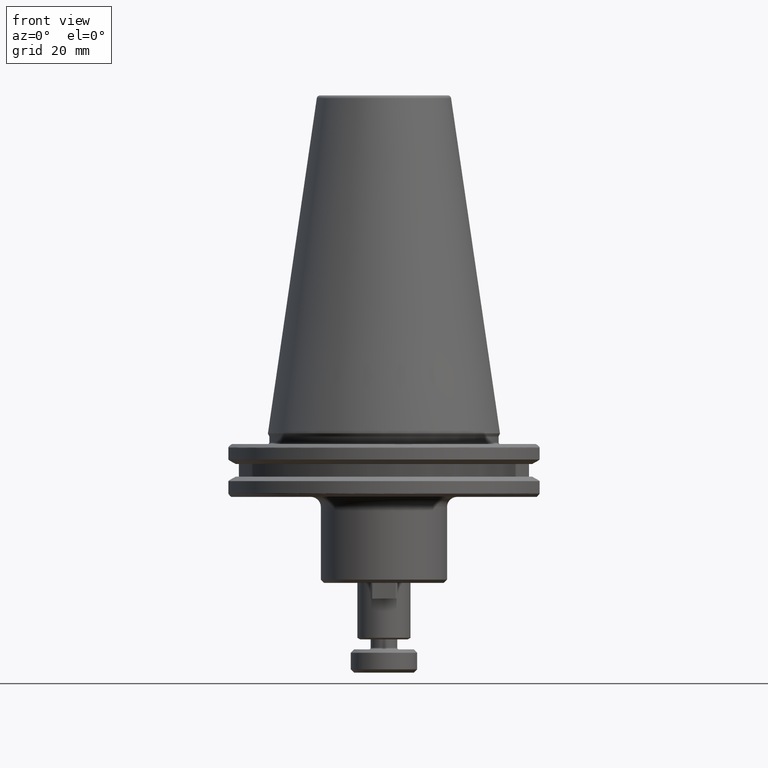
[diagram: clean part render]
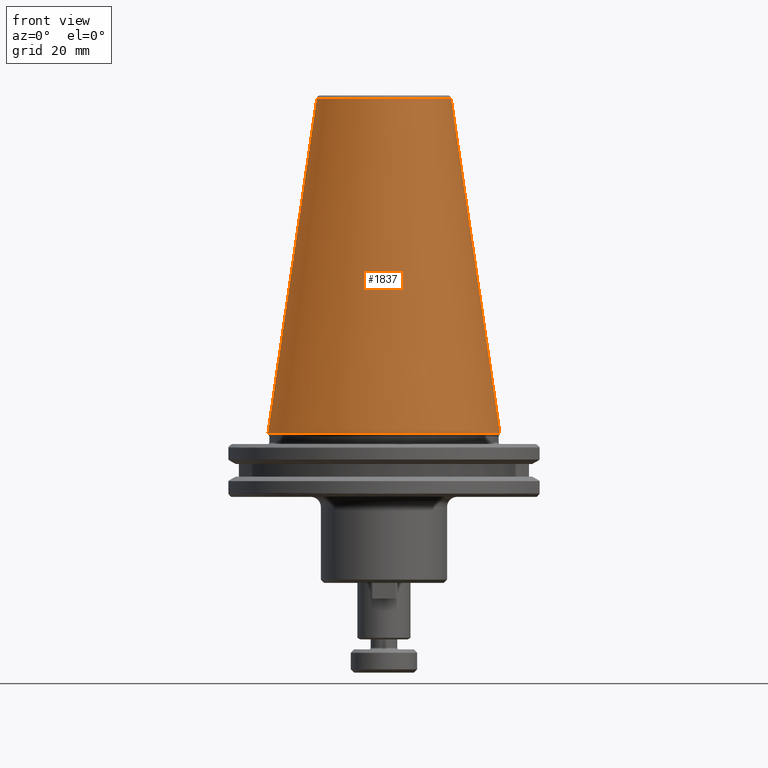
[diagram: same view with one face highlighted and labeled with its STEP entity id]
A machine part, front view. The second image highlights one B-rep face of the part: STEP entity #1837.
In plain terms, the highlighted conical surface has half-angle 8.297 deg.
Its self-contained STEP definition (entity closure, byte-faithful):
#28 = EDGE_LOOP ( 'NONE', ( #1969, #2177, #2037, #3139 ) ) ;
#39 = VERTEX_POINT ( 'NONE', #2943 ) ;
#78 = VECTOR ( 'NONE', #3220, 1000.000000000000000 ) ;
#218 = EDGE_CURVE ( 'NONE', #39, #2220, #3115, .T. ) ;
#233 = DIRECTION ( 'NONE',  ( 0.1443082272673070200, 1.767266086135363300E-017, -0.9895327864921743500 ) ) ;
#414 = CONICAL_SURFACE ( 'NONE', #891, 20.21110778703758000, 0.1448138465474190200 ) ;
#442 = DIRECTION ( 'NONE',  ( 0.0000000000000000000, 0.0000000000000000000, -1.000000000000000000 ) ) ;
#770 = CARTESIAN_POINT ( 'NONE',  ( 0.0000000000000000000, 0.0000000000000000000, 100.8943082272673000 ) ) ;
#803 = CARTESIAN_POINT ( 'NONE',  ( -20.21110778703758000, 0.0000000000000000000, 100.8943082272673000 ) ) ;
#891 = AXIS2_PLACEMENT_3D ( 'NONE', #770, #442, #3754 ) ;
#904 = LINE ( 'NONE', #3516, #78 ) ;
#981 = CIRCLE ( 'NONE', #3526, 20.21110778703758000 ) ;
#1181 = DIRECTION ( 'NONE',  ( -0.0000000000000000000, -0.0000000000000000000, 1.000000000000000000 ) ) ;
#1631 = DIRECTION ( 'NONE',  ( -0.0000000000000000000, -0.0000000000000000000, 1.000000000000000000 ) ) ;
#1642 = FACE_OUTER_BOUND ( 'NONE', #28, .T. ) ;
#1657 = VERTEX_POINT ( 'NONE', #2273 ) ;
#1837 = ADVANCED_FACE ( 'NONE', ( #1642 ), #414, .T. ) ;
#1969 = ORIENTED_EDGE ( 'NONE', *, *, #218, .F. ) ;
#2037 = ORIENTED_EDGE ( 'NONE', *, *, #2287, .T. ) ;
#2160 = VECTOR ( 'NONE', #233, 1000.000000000000000 ) ;
#2177 = ORIENTED_EDGE ( 'NONE', *, *, #3796, .F. ) ;
#2220 = VERTEX_POINT ( 'NONE', #3755 ) ;
#2232 = AXIS2_PLACEMENT_3D ( 'NONE', #3434, #1631, #3729 ) ;
#2273 = CARTESIAN_POINT ( 'NONE',  ( -34.92500000000000400, 4.277078946022131700E-015, 0.0000000000000000000 ) ) ;
#2287 = EDGE_CURVE ( 'NONE', #2407, #1657, #904, .T. ) ;
#2407 = VERTEX_POINT ( 'NONE', #803 ) ;
#2557 = CIRCLE ( 'NONE', #2232, 34.92500000000000400 ) ;
#2943 = CARTESIAN_POINT ( 'NONE',  ( 20.21110778703758000, 3.376112895941951400E-015, 100.8943082272673000 ) ) ;
#2982 = CARTESIAN_POINT ( 'NONE',  ( 0.0000000000000000000, 0.0000000000000000000, 100.8943082272673000 ) ) ;
#3115 = LINE ( 'NONE', #3514, #2160 ) ;
#3139 = ORIENTED_EDGE ( 'NONE', *, *, #3543, .T. ) ;
#3220 = DIRECTION ( 'NONE',  ( -0.1443082272673070200, 0.0000000000000000000, -0.9895327864921743500 ) ) ;
#3277 = DIRECTION ( 'NONE',  ( 1.000000000000000000, 0.0000000000000000000, 0.0000000000000000000 ) ) ;
#3434 = CARTESIAN_POINT ( 'NONE',  ( 0.0000000000000000000, 0.0000000000000000000, 0.0000000000000000000 ) ) ;
#3514 = CARTESIAN_POINT ( 'NONE',  ( 20.21110778703758000, 2.475146845861771500E-015, 100.8943082272673000 ) ) ;
#3516 = CARTESIAN_POINT ( 'NONE',  ( -20.21110778703758000, 0.0000000000000000000, 100.8943082272673000 ) ) ;
#3526 = AXIS2_PLACEMENT_3D ( 'NONE', #2982, #1181, #3277 ) ;
#3543 = EDGE_CURVE ( 'NONE', #1657, #2220, #2557, .T. ) ;
#3729 = DIRECTION ( 'NONE',  ( 1.000000000000000000, 0.0000000000000000000, 0.0000000000000000000 ) ) ;
#3754 = DIRECTION ( 'NONE',  ( -1.000000000000000000, 0.0000000000000000000, 0.0000000000000000000 ) ) ;
#3755 = CARTESIAN_POINT ( 'NONE',  ( 34.92500000000000400, 0.0000000000000000000, 0.0000000000000000000 ) ) ;
#3796 = EDGE_CURVE ( 'NONE', #2407, #39, #981, .T. ) ;